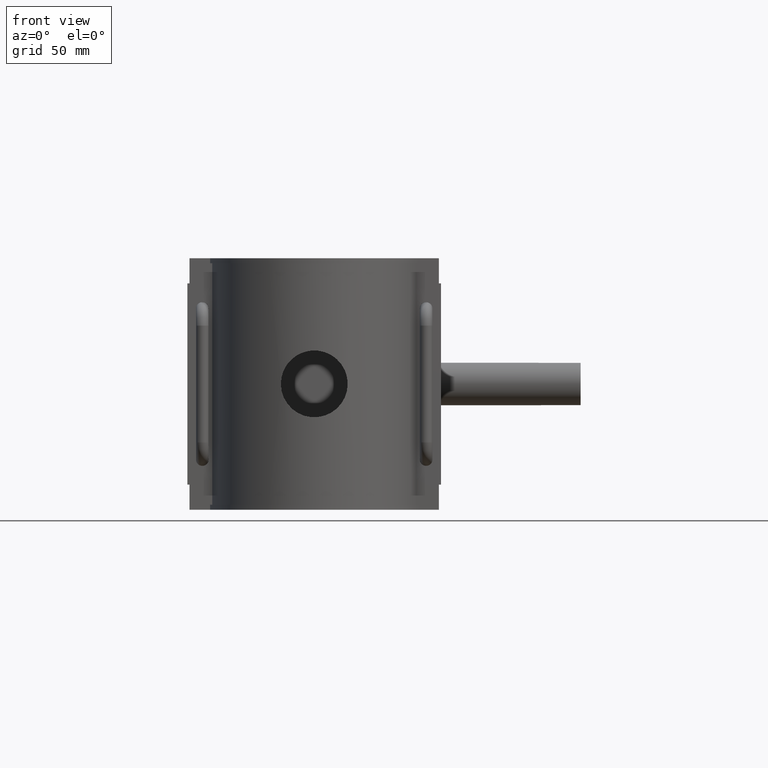
[diagram: clean part render]
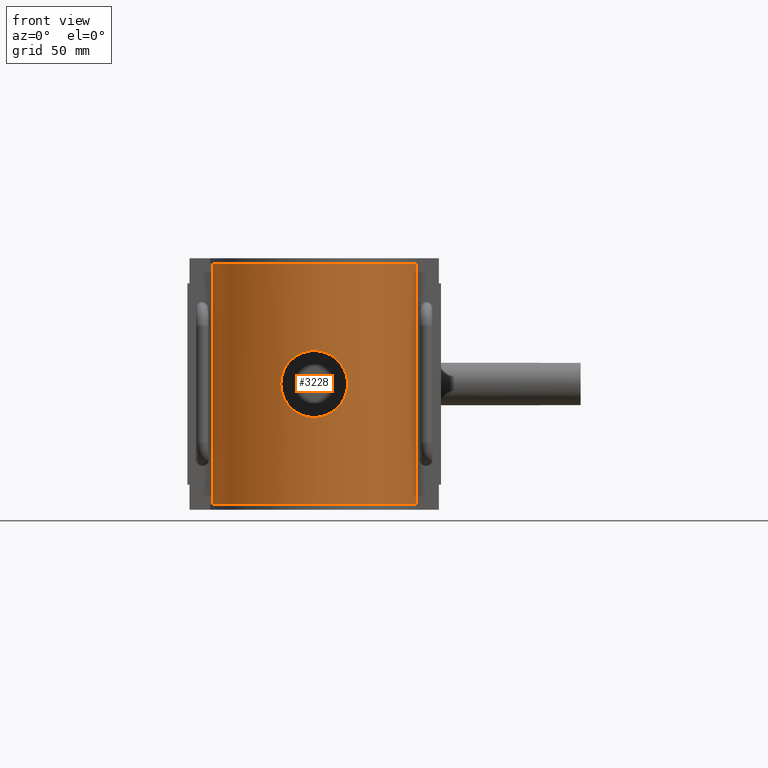
[diagram: same view with one face highlighted and labeled with its STEP entity id]
A machine part, front view. The second image highlights one B-rep face of the part: STEP entity #3228.
In plain terms, the highlighted cylindrical surface (partial cylindrical patch) has radius 48.75 mm, axis along (0, 0, 1).
Its self-contained STEP definition (entity closure, byte-faithful):
#116=LINE('',#5420,#403);
#151=LINE('',#5690,#438);
#403=VECTOR('',#3983,113.28);
#438=VECTOR('',#4060,113.28);
#643=FACE_BOUND('',#1062,.T.);
#684=B_SPLINE_CURVE_WITH_KNOTS('',3,(#5024,#5025,#5026,#5027,#5028,#5029,
#5030,#5031,#5032,#5033,#5034,#5035,#5036,#5037,#5038,#5039,#5040,#5041,
#5042,#5043,#5044,#5045,#5046,#5047,#5048,#5049,#5050,#5051,#5052,#5053,
#5054,#5055,#5056,#5057,#5058,#5059,#5060,#5061,#5062,#5063,#5064,#5065,
#5066,#5067,#5068,#5069,#5070,#5071,#5072,#5073,#5074,#5075,#5076,#5077,
#5078,#5079,#5080,#5081),.UNSPECIFIED.,.T.,.F.,(4,2,2,2,2,2,2,2,2,2,2,2,
2,2,2,2,2,2,2,2,2,2,2,2,2,2,2,2,4),(0.,0.297681569880699,0.595363139761398,
1.1907262795228,1.48828908378426,1.78585188804573,2.0834146923072,2.38097749656866,
2.67854030083013,2.9761031050916,3.27366590935306,3.57122871361453,4.16659185337593,
4.46427342325663,4.76195499313733,5.05963656301803,5.35731813289873,5.95268127266012,
6.25024407692159,6.54780688118306,6.84536968544452,7.14293248970599,7.44049529396746,
7.73805809822892,8.03562090249039,8.33318370675186,8.92854684651326,9.22622841639395,
9.52390998627465),.UNSPECIFIED.);
#750=CYLINDRICAL_SURFACE('',#3493,48.75);
#848=FACE_OUTER_BOUND('',#1061,.T.);
#1061=EDGE_LOOP('',(#2447,#2448,#2449,#2450));
#1062=EDGE_LOOP('',(#2451));
#1267=CIRCLE('',#3469,48.75);
#1275=CIRCLE('',#3483,48.75);
#1413=VERTEX_POINT('',#5023);
#1428=VERTEX_POINT('',#5405);
#1429=VERTEX_POINT('',#5407);
#1433=VERTEX_POINT('',#5419);
#1454=VERTEX_POINT('',#5490);
#1763=EDGE_CURVE('',#1413,#1413,#684,.T.);
#1782=EDGE_CURVE('',#1428,#1429,#1267,.T.);
#1787=EDGE_CURVE('',#1428,#1433,#116,.T.);
#1811=EDGE_CURVE('',#1454,#1433,#1275,.T.);
#1846=EDGE_CURVE('',#1429,#1454,#151,.T.);
#2447=ORIENTED_EDGE('',*,*,#1782,.T.);
#2448=ORIENTED_EDGE('',*,*,#1846,.T.);
#2449=ORIENTED_EDGE('',*,*,#1811,.T.);
#2450=ORIENTED_EDGE('',*,*,#1787,.F.);
#2451=ORIENTED_EDGE('',*,*,#1763,.T.);
#3228=ADVANCED_FACE('',(#848,#643),#750,.T.);
#3469=AXIS2_PLACEMENT_3D('',#5409,#3973,#3974);
#3483=AXIS2_PLACEMENT_3D('',#5491,#4020,#4021);
#3493=AXIS2_PLACEMENT_3D('',#5691,#4061,#4062);
#3973=DIRECTION('center_axis',(0.,0.,1.));
#3974=DIRECTION('ref_axis',(1.,0.,0.));
#3983=DIRECTION('',(0.,0.,1.));
#4020=DIRECTION('center_axis',(0.,0.,-1.));
#4021=DIRECTION('ref_axis',(1.,0.,0.));
#4060=DIRECTION('',(0.,0.,1.));
#4061=DIRECTION('center_axis',(0.,0.,1.));
#4062=DIRECTION('ref_axis',(1.,0.,0.));
#5023=CARTESIAN_POINT('',(15.68,-46.1595071464157,2.77555756156289E-16));
#5024=CARTESIAN_POINT('Ctrl Pts',(15.68,-46.1595071464157,2.77555756156289E-16));
#5025=CARTESIAN_POINT('Ctrl Pts',(15.68,-46.1595071464157,-0.99227189960233));
#5026=CARTESIAN_POINT('Ctrl Pts',(15.5842935405567,-46.1923889652067,-2.01595492010281));
#5027=CARTESIAN_POINT('Ctrl Pts',(15.183935965464,-46.3255339095792,-4.04751381197084));
#5028=CARTESIAN_POINT('Ctrl Pts',(14.8793980157976,-46.4256659242084,-5.05542057384396));
#5029=CARTESIAN_POINT('Ctrl Pts',(13.6761336257904,-46.7999101283691,-7.9492941136592));
#5030=CARTESIAN_POINT('Ctrl Pts',(12.4719648587682,-47.1490623646406,-9.70290379924189));
#5031=CARTESIAN_POINT('Ctrl Pts',(10.3954452562737,-47.6340444123171,-11.7794234017365));
#5032=CARTESIAN_POINT('Ctrl Pts',(9.61334211821111,-47.8006009472574,-12.4299252904814));
#5033=CARTESIAN_POINT('Ctrl Pts',(7.90801523521285,-48.1121304104389,-13.5787585765199));
#5034=CARTESIAN_POINT('Ctrl Pts',(6.98479635704538,-48.2568174339858,-14.0771747075443));
#5035=CARTESIAN_POINT('Ctrl Pts',(5.05513935592339,-48.4969419143082,-14.8795092881687));
#5036=CARTESIAN_POINT('Ctrl Pts',(4.0470360245561,-48.5923849255554,-15.1840649296733));
#5037=CARTESIAN_POINT('Ctrl Pts',(2.01541754302038,-48.7189538625889,-15.5843646165512));
#5038=CARTESIAN_POINT('Ctrl Pts',(0.99187601420489,-48.75,-15.68));
#5039=CARTESIAN_POINT('Ctrl Pts',(-0.991876014204889,-48.75,-15.68));
#5040=CARTESIAN_POINT('Ctrl Pts',(-2.01541754302038,-48.7189538625889,-15.5843646165512));
#5041=CARTESIAN_POINT('Ctrl Pts',(-4.0470360245561,-48.5923849255554,-15.1840649296733));
#5042=CARTESIAN_POINT('Ctrl Pts',(-5.05513935592338,-48.4969419143082,-14.8795092881687));
#5043=CARTESIAN_POINT('Ctrl Pts',(-6.98479635704537,-48.2568174339858,-14.0771747075443));
#5044=CARTESIAN_POINT('Ctrl Pts',(-7.90801523521284,-48.1121304104389,-13.5787585765199));
#5045=CARTESIAN_POINT('Ctrl Pts',(-9.6133421182111,-47.8006009472574,-12.4299252904814));
#5046=CARTESIAN_POINT('Ctrl Pts',(-10.3954452562737,-47.6340444123171,-11.7794234017365));
#5047=CARTESIAN_POINT('Ctrl Pts',(-12.4719648587682,-47.1490623646406,-9.70290379924189));
#5048=CARTESIAN_POINT('Ctrl Pts',(-13.6761336257904,-46.7999101283691,-7.94929411365921));
#5049=CARTESIAN_POINT('Ctrl Pts',(-14.8793980157976,-46.4256659242084,-5.05542057384396));
#5050=CARTESIAN_POINT('Ctrl Pts',(-15.183935965464,-46.3255339095792,-4.04751381197085));
#5051=CARTESIAN_POINT('Ctrl Pts',(-15.5842935405567,-46.1923889652067,-2.01595492010282));
#5052=CARTESIAN_POINT('Ctrl Pts',(-15.68,-46.1595071464157,-0.992271899602333));
#5053=CARTESIAN_POINT('Ctrl Pts',(-15.68,-46.1595071464157,0.99227189960233));
#5054=CARTESIAN_POINT('Ctrl Pts',(-15.5842935405567,-46.1923889652067,2.01595492010281));
#5055=CARTESIAN_POINT('Ctrl Pts',(-15.183935965464,-46.3255339095792,4.04751381197084));
#5056=CARTESIAN_POINT('Ctrl Pts',(-14.8793980157976,-46.4256659242084,5.05542057384396));
#5057=CARTESIAN_POINT('Ctrl Pts',(-13.6761336257904,-46.7999101283691,7.9492941136592));
#5058=CARTESIAN_POINT('Ctrl Pts',(-12.4719648587682,-47.1490623646406,9.70290379924189));
#5059=CARTESIAN_POINT('Ctrl Pts',(-10.3954452562737,-47.6340444123171,11.7794234017365));
#5060=CARTESIAN_POINT('Ctrl Pts',(-9.61334211821111,-47.8006009472574,12.4299252904814));
#5061=CARTESIAN_POINT('Ctrl Pts',(-7.90801523521285,-48.1121304104389,13.5787585765199));
#5062=CARTESIAN_POINT('Ctrl Pts',(-6.98479635704538,-48.2568174339858,14.0771747075443));
#5063=CARTESIAN_POINT('Ctrl Pts',(-5.05513935592339,-48.4969419143082,14.8795092881687));
#5064=CARTESIAN_POINT('Ctrl Pts',(-4.0470360245561,-48.5923849255554,15.1840649296733));
#5065=CARTESIAN_POINT('Ctrl Pts',(-2.01541754302038,-48.7189538625889,15.5843646165512));
#5066=CARTESIAN_POINT('Ctrl Pts',(-0.991876014204891,-48.75,15.68));
#5067=CARTESIAN_POINT('Ctrl Pts',(0.991876014204886,-48.75,15.68));
#5068=CARTESIAN_POINT('Ctrl Pts',(2.01541754302038,-48.7189538625889,15.5843646165512));
#5069=CARTESIAN_POINT('Ctrl Pts',(4.0470360245561,-48.5923849255554,15.1840649296733));
#5070=CARTESIAN_POINT('Ctrl Pts',(5.05513935592338,-48.4969419143082,14.8795092881687));
#5071=CARTESIAN_POINT('Ctrl Pts',(6.98479635704537,-48.2568174339858,14.0771747075443));
#5072=CARTESIAN_POINT('Ctrl Pts',(7.90801523521284,-48.1121304104389,13.5787585765199));
#5073=CARTESIAN_POINT('Ctrl Pts',(9.6133421182111,-47.8006009472574,12.4299252904814));
#5074=CARTESIAN_POINT('Ctrl Pts',(10.3954452562737,-47.6340444123171,11.7794234017365));
#5075=CARTESIAN_POINT('Ctrl Pts',(12.4719648587682,-47.1490623646406,9.70290379924189));
#5076=CARTESIAN_POINT('Ctrl Pts',(13.6761336257904,-46.7999101283691,7.9492941136592));
#5077=CARTESIAN_POINT('Ctrl Pts',(14.8793980157976,-46.4256659242084,5.05542057384396));
#5078=CARTESIAN_POINT('Ctrl Pts',(15.183935965464,-46.3255339095792,4.04751381197085));
#5079=CARTESIAN_POINT('Ctrl Pts',(15.5842935405567,-46.1923889652067,2.01595492010282));
#5080=CARTESIAN_POINT('Ctrl Pts',(15.68,-46.1595071464157,0.992271899602332));
#5081=CARTESIAN_POINT('Ctrl Pts',(15.68,-46.1595071464157,-5.55111512312578E-16));
#5405=CARTESIAN_POINT('',(-47.840065583149,-9.375,-56.64));
#5407=CARTESIAN_POINT('',(47.840065583149,-9.375,-56.64));
#5409=CARTESIAN_POINT('Origin',(0.,0.,-56.64));
#5419=CARTESIAN_POINT('',(-47.840065583149,-9.375,56.64));
#5420=CARTESIAN_POINT('',(-47.840065583149,-9.375,0.));
#5490=CARTESIAN_POINT('',(47.840065583149,-9.375,56.64));
#5491=CARTESIAN_POINT('Origin',(0.,0.,56.64));
#5690=CARTESIAN_POINT('',(47.840065583149,-9.375,0.));
#5691=CARTESIAN_POINT('Origin',(0.,0.,0.));